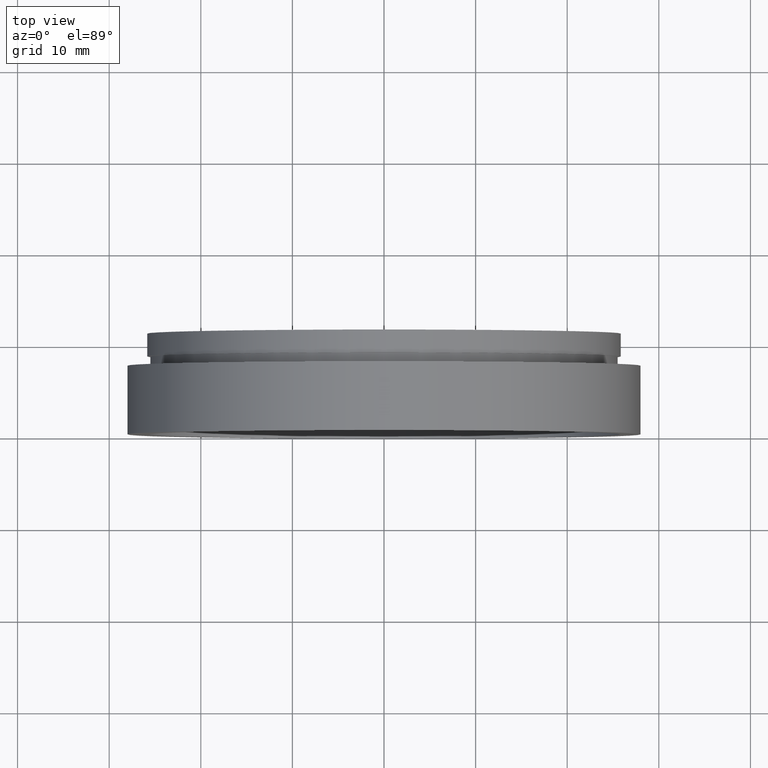
[diagram: clean part render]
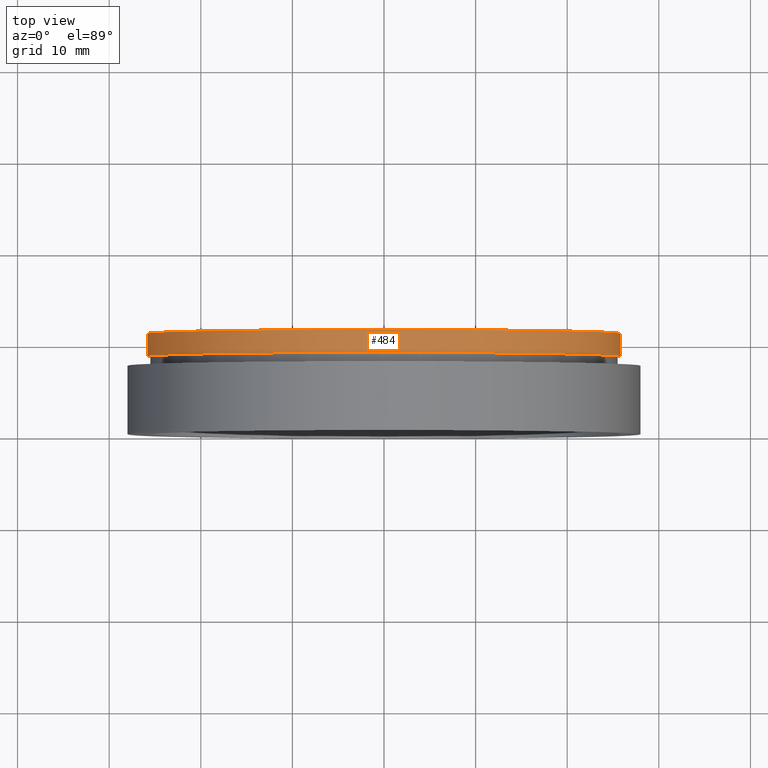
[diagram: same view with one face highlighted and labeled with its STEP entity id]
A machine part, top view. The second image highlights one B-rep face of the part: STEP entity #484.
In plain terms, the highlighted cylindrical surface (partial cylindrical patch) has radius 25.85 mm, axis along (-0, 1, -0).
Its self-contained STEP definition (entity closure, byte-faithful):
#34 = CIRCLE ( 'NONE', #593, 25.85000000000000100 ) ;
#38 = EDGE_LOOP ( 'NONE', ( #128, #73, #598, #83 ) ) ;
#44 = CARTESIAN_POINT ( 'NONE',  ( -25.85000000000000100, 16.88601823708207300, 0.0000000000000000000 ) ) ;
#47 = LINE ( 'NONE', #305, #582 ) ;
#62 = CARTESIAN_POINT ( 'NONE',  ( 7.208293393765502500E-016, 10.99999999999999600, 0.0000000000000000000 ) ) ;
#73 = ORIENTED_EDGE ( 'NONE', *, *, #244, .T. ) ;
#83 = ORIENTED_EDGE ( 'NONE', *, *, #618, .F. ) ;
#88 = DIRECTION ( 'NONE',  ( -1.224646799147351000E-016, 1.000000000000000000, -0.0000000000000000000 ) ) ;
#92 = CARTESIAN_POINT ( 'NONE',  ( 1.026991039163387900E-015, 8.499999999999996400, 0.0000000000000000000 ) ) ;
#128 = ORIENTED_EDGE ( 'NONE', *, *, #568, .T. ) ;
#161 = VERTEX_POINT ( 'NONE', #545 ) ;
#170 = CARTESIAN_POINT ( 'NONE',  ( 0.0000000000000000000, 16.88601823708207700, 0.0000000000000000000 ) ) ;
#176 = AXIS2_PLACEMENT_3D ( 'NONE', #170, #560, #366 ) ;
#232 = VERTEX_POINT ( 'NONE', #592 ) ;
#244 = EDGE_CURVE ( 'NONE', #463, #161, #47, .T. ) ;
#268 = EDGE_CURVE ( 'NONE', #316, #161, #414, .T. ) ;
#285 = AXIS2_PLACEMENT_3D ( 'NONE', #62, #547, #355 ) ;
#305 = CARTESIAN_POINT ( 'NONE',  ( 25.85000000000000100, 16.88601823708208000, 3.165711975795908200E-015 ) ) ;
#316 = VERTEX_POINT ( 'NONE', #548 ) ;
#336 = VECTOR ( 'NONE', #478, 1000.000000000000000 ) ;
#355 = DIRECTION ( 'NONE',  ( -1.000000000000000000, -1.342145822806040300E-016, 0.0000000000000000000 ) ) ;
#366 = DIRECTION ( 'NONE',  ( -1.000000000000000000, -1.342145822806040300E-016, 0.0000000000000000000 ) ) ;
#403 = CARTESIAN_POINT ( 'NONE',  ( 25.85000000000000100, 8.500000000000000000, 3.165711975795908200E-015 ) ) ;
#414 = CIRCLE ( 'NONE', #285, 25.85000000000000100 ) ;
#438 = FACE_OUTER_BOUND ( 'NONE', #38, .T. ) ;
#446 = DIRECTION ( 'NONE',  ( -1.224646799147351000E-016, 1.000000000000000000, -0.0000000000000000000 ) ) ;
#463 = VERTEX_POINT ( 'NONE', #403 ) ;
#478 = DIRECTION ( 'NONE',  ( -1.224646799147351000E-016, 1.000000000000000000, -0.0000000000000000000 ) ) ;
#484 = ADVANCED_FACE ( 'NONE', ( #438 ), #559, .T. ) ;
#533 = LINE ( 'NONE', #44, #336 ) ;
#545 = CARTESIAN_POINT ( 'NONE',  ( 25.85000000000000100, 11.00000000000000000, 3.165711975795908200E-015 ) ) ;
#547 = DIRECTION ( 'NONE',  ( -1.224646799147351000E-016, 1.000000000000000000, -0.0000000000000000000 ) ) ;
#548 = CARTESIAN_POINT ( 'NONE',  ( -25.85000000000000100, 10.99999999999999300, 0.0000000000000000000 ) ) ;
#559 = CYLINDRICAL_SURFACE ( 'NONE', #176, 25.85000000000000100 ) ;
#560 = DIRECTION ( 'NONE',  ( -1.224646799147351000E-016, 1.000000000000000000, -0.0000000000000000000 ) ) ;
#568 = EDGE_CURVE ( 'NONE', #232, #463, #34, .T. ) ;
#572 = DIRECTION ( 'NONE',  ( -1.000000000000000000, -1.342145822806040300E-016, 0.0000000000000000000 ) ) ;
#582 = VECTOR ( 'NONE', #446, 1000.000000000000000 ) ;
#592 = CARTESIAN_POINT ( 'NONE',  ( -25.85000000000000100, 8.499999999999992900, 0.0000000000000000000 ) ) ;
#593 = AXIS2_PLACEMENT_3D ( 'NONE', #92, #88, #572 ) ;
#598 = ORIENTED_EDGE ( 'NONE', *, *, #268, .F. ) ;
#618 = EDGE_CURVE ( 'NONE', #232, #316, #533, .T. ) ;